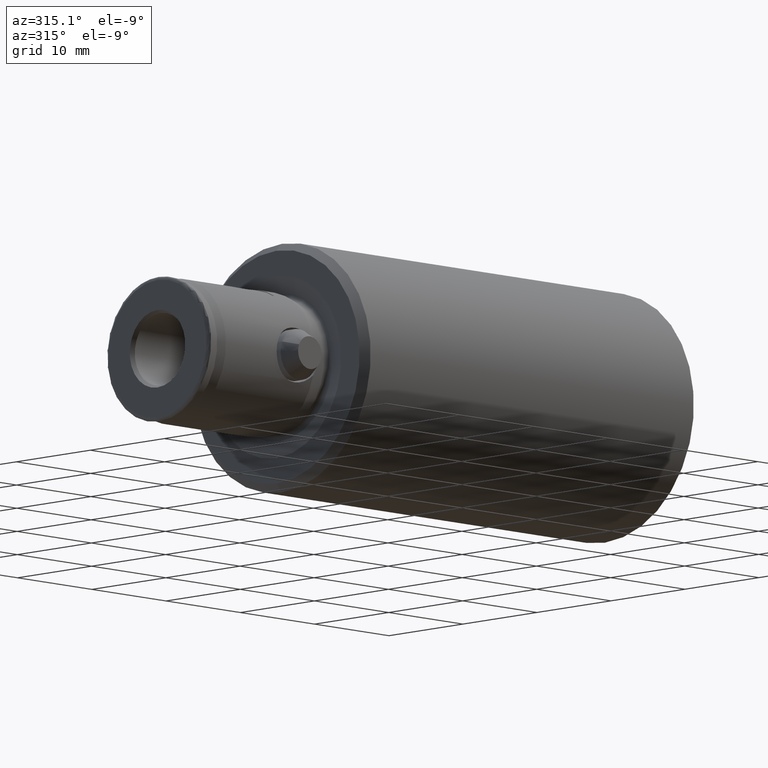
[diagram: clean part render]
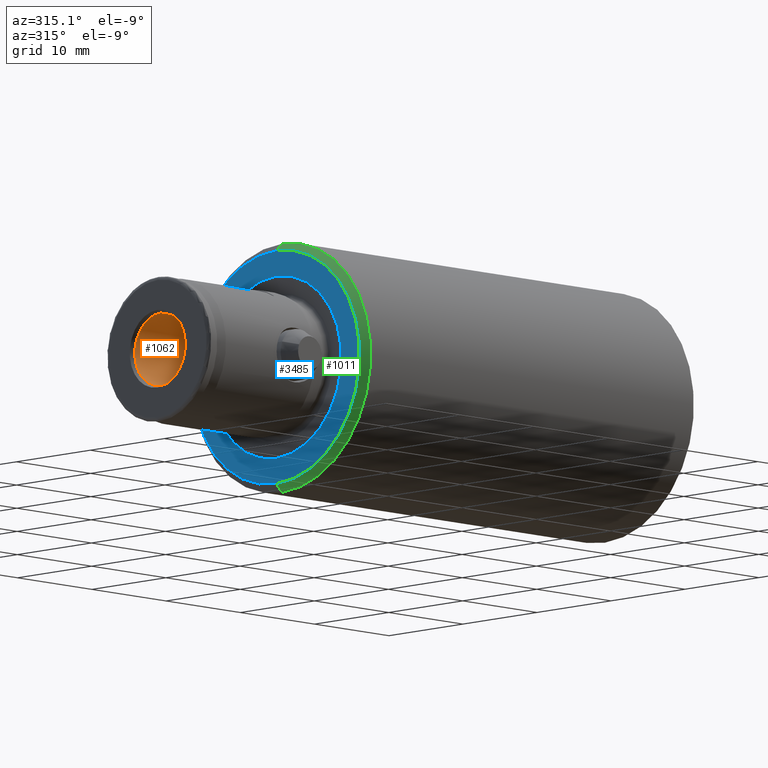
[diagram: same view with three faces highlighted in distinct colors, each labeled with its STEP entity id]
A machine part, auxiliary view with three faces highlighted in distinct colors.
Their STEP definitions:

[orange] entity #1062 — the highlighted cylindrical surface (partial cylindrical patch) has radius 3.5 mm, axis along (-1, 0, -0).
#19 = FACE_OUTER_BOUND ( 'NONE', #2762, .T. ) ;
#35 = ORIENTED_EDGE ( 'NONE', *, *, #2875, .T. ) ;
#38 = EDGE_CURVE ( 'NONE', #66, #3526, #2952, .T. ) ;
#40 = CARTESIAN_POINT ( 'NONE',  ( -0.6705354225800445000, 3.439204883824248600, 51.41427216192288100 ) ) ;
#56 = CARTESIAN_POINT ( 'NONE',  ( -2.482216308833650900, 2.467971294792597800, 48.65803483460760500 ) ) ;
#66 = VERTEX_POINT ( 'NONE', #887 ) ;
#71 = CARTESIAN_POINT ( 'NONE',  ( -0.3431123106384330600, 3.487133633867435000, 46.51792659859923900 ) ) ;
#81 = B_SPLINE_CURVE_WITH_KNOTS ( 'NONE', 3,
 ( #434, #1120, #1432, #3727, #1769, #4056, #2097, #145, #2437, #461, #2765, #795, #3077, #1136, #3405, #1445, #3740, #1785, #4071, #2106, #161, #2450, #475, #2775, #810, #3091, #1149, #3420, #1459, #3751 ),
 .UNSPECIFIED., .F., .F.,
 ( 4, 2, 2, 2, 2, 2, 2, 2, 2, 2, 2, 2, 2, 2, 4 ),
 ( 0.008142227177024407400, 0.008650378325672308800, 0.009158529474320210200, 0.01017483177161600600, 0.01068298292026390400, 0.01119113406891180000, 0.01169928521755969800, 0.01220743636620759600, 0.01271558751485549400, 0.01322373866350339000, 0.01424004096079918600, 0.01474819210944707700, 0.01525634325809496800, 0.01576449440674285900, 0.01627264555539075000 ),
 .UNSPECIFIED. ) ;
#118 = DIRECTION ( 'NONE',  ( -0.0000000000000000000, -0.0000000000000000000, 1.000000000000000000 ) ) ;
#144 = CARTESIAN_POINT ( 'NONE',  ( 3.500000000000000000, 2.610441737844971200E-016, 53.24999999999999300 ) ) ;
#145 = CARTESIAN_POINT ( 'NONE',  ( 1.887866161972031200, 2.950011481771301500, 47.35352781131247500 ) ) ;
#160 = CARTESIAN_POINT ( 'NONE',  ( 3.280464967001534200, 1.235861272596863000, 52.84302111546583800 ) ) ;
#161 = CARTESIAN_POINT ( 'NONE',  ( 1.995196348625067500, 2.887101770125802600, 50.53889020587783400 ) ) ;
#172 = CARTESIAN_POINT ( 'NONE',  ( 3.005962981786305400, 1.793794415438251900, 50.35599755682680700 ) ) ;
#246 = VERTEX_POINT ( 'NONE', #448 ) ;
#251 = VERTEX_POINT ( 'NONE', #2420 ) ;
#281 = CARTESIAN_POINT ( 'NONE',  ( 3.500000000000000000, 0.0000000000000000000, 0.0000000000000000000 ) ) ;
#341 = AXIS2_PLACEMENT_3D ( 'NONE', #752, #3027, #1079 ) ;
#351 = EDGE_CURVE ( 'NONE', #246, #1810, #565, .T. ) ;
#352 = CARTESIAN_POINT ( 'NONE',  ( -1.285980198335047000, 3.270383196310063600, 51.16894089365562300 ) ) ;
#373 = CARTESIAN_POINT ( 'NONE',  ( -2.364630610533931400, 2.581771683845384100, 48.17255734451457300 ) ) ;
#388 = CARTESIAN_POINT ( 'NONE',  ( 3.061619777722069700E-016, 3.500000000000000000, 46.50000000000000000 ) ) ;
#429 = CARTESIAN_POINT ( 'NONE',  ( -3.500000000000000000, 4.286263797015735600E-016, 0.0000000000000000000 ) ) ;
#434 = CARTESIAN_POINT ( 'NONE',  ( 3.061619777722069700E-016, 3.500000000000000000, 46.50000000000000000 ) ) ;
#448 = CARTESIAN_POINT ( 'NONE',  ( 3.500000000000000000, 0.0000000000000000000, 60.56698729810774800 ) ) ;
#460 = CARTESIAN_POINT ( 'NONE',  ( 3.500000000000000400, 0.1353095862226005900, 53.25000000000000700 ) ) ;
#461 = CARTESIAN_POINT ( 'NONE',  ( 2.162701272314670600, 2.754021796724779800, 47.73605822659469300 ) ) ;
#474 = CARTESIAN_POINT ( 'NONE',  ( 3.119858925470030200, 1.588416127185096700, 52.47202111316654800 ) ) ;
#475 = CARTESIAN_POINT ( 'NONE',  ( 1.538927511015989700, 3.146818823286347700, 50.97665974346773500 ) ) ;
#478 = ORIENTED_EDGE ( 'NONE', *, *, #351, .T. ) ;
#483 = CARTESIAN_POINT ( 'NONE',  ( 3.120002460480572700, 1.588151074585294000, 50.02757936062951000 ) ) ;
#498 = ORIENTED_EDGE ( 'NONE', *, *, #756, .T. ) ;
#565 = CIRCLE ( 'NONE', #341, 3.500000000000000000 ) ;
#648 = EDGE_CURVE ( 'NONE', #4089, #66, #2396, .T. ) ;
#678 = FACE_BOUND ( 'NONE', #3462, .T. ) ;
#693 = CARTESIAN_POINT ( 'NONE',  ( -1.886799119579478200, 2.950684532684875200, 50.64766414144862200 ) ) ;
#703 = VECTOR ( 'NONE', #2413, 1000.000000000000000 ) ;
#707 = CARTESIAN_POINT ( 'NONE',  ( -2.161259850131959300, 2.755142574535705900, 47.73366254297636900 ) ) ;
#752 = CARTESIAN_POINT ( 'NONE',  ( 0.0000000000000000000, 0.0000000000000000000, 60.56698729810774800 ) ) ;
#756 = EDGE_CURVE ( 'NONE', #3526, #1414, #1053, .T. ) ;
#795 = CARTESIAN_POINT ( 'NONE',  ( 2.365272960845886000, 2.581168163197376900, 48.17450396673849900 ) ) ;
#809 = CARTESIAN_POINT ( 'NONE',  ( 3.006833445989888400, 1.792338209967291500, 52.14687682266786300 ) ) ;
#810 = CARTESIAN_POINT ( 'NONE',  ( 1.134371722761302800, 3.314785638488976000, 51.23383349870009300 ) ) ;
#823 = CARTESIAN_POINT ( 'NONE',  ( 3.240407826058251800, 1.326471784472252200, 49.74771099519588800 ) ) ;
#847 = CARTESIAN_POINT ( 'NONE',  ( -3.500000000000000000, 4.286263797015734600E-016, 18.86488837849823600 ) ) ;
#887 = CARTESIAN_POINT ( 'NONE',  ( 0.0000000000000000000, 3.499999999999997800, 18.86488837849823600 ) ) ;
#972 = AXIS2_PLACEMENT_3D ( 'NONE', #3883, #1600, #1268 ) ;
#993 = ORIENTED_EDGE ( 'NONE', *, *, #648, .T. ) ;
#1027 = CARTESIAN_POINT ( 'NONE',  ( -2.162927356596466000, 2.753832568531272800, 50.26350931059186400 ) ) ;
#1040 = CARTESIAN_POINT ( 'NONE',  ( 3.500000000000000000, 0.0000000000000000000, 18.86488837849823600 ) ) ;
#1044 = CARTESIAN_POINT ( 'NONE',  ( -1.886843374425818200, 2.950677877677379000, 47.35233068107467600 ) ) ;
#1053 = LINE ( 'NONE', #281, #1812 ) ;
#1057 = DIRECTION ( 'NONE',  ( 0.0000000000000000000, -4.148317104405457400E-017, -1.000000000000000000 ) ) ;
#1062 = ADVANCED_FACE ( 'NONE', ( #19, #678 ), #2323, .F. ) ;
#1078 = CARTESIAN_POINT ( 'NONE',  ( 3.500000000000000000, -7.774546621463059200E-017, 49.25000000000000000 ) ) ;
#1079 = DIRECTION ( 'NONE',  ( 1.000000000000000000, 0.0000000000000000000, 0.0000000000000000000 ) ) ;
#1120 = CARTESIAN_POINT ( 'NONE',  ( 0.1698619389239767500, 3.500000000000001300, 46.50000000000002100 ) ) ;
#1136 = CARTESIAN_POINT ( 'NONE',  ( 2.482778614663782700, 2.467401880149701700, 48.66193324074072300 ) ) ;
#1148 = CARTESIAN_POINT ( 'NONE',  ( 2.917883842938216300, 1.933125680610410000, 51.77967263128948600 ) ) ;
#1149 = CARTESIAN_POINT ( 'NONE',  ( 0.6707495009829057600, 3.439161042097103900, 51.41420977330495400 ) ) ;
#1159 = CARTESIAN_POINT ( 'NONE',  ( 3.351856539173821800, 1.013729725858635700, 49.52118059685040000 ) ) ;
#1193 = VECTOR ( 'NONE', #118, 1000.000000000000000 ) ;
#1268 = DIRECTION ( 'NONE',  ( 1.000000000000000000, 0.0000000000000000000, 0.0000000000000000000 ) ) ;
#1313 = ORIENTED_EDGE ( 'NONE', *, *, #3222, .F. ) ;
#1331 = CARTESIAN_POINT ( 'NONE',  ( -9.619845486922396800E-016, 3.500000000000000000, 51.50000000000000700 ) ) ;
#1347 = EDGE_CURVE ( 'NONE', #4089, #1810, #3890, .T. ) ;
#1350 = CARTESIAN_POINT ( 'NONE',  ( -2.364482919861924200, 2.581902618484873900, 49.82781121397877700 ) ) ;
#1361 = CARTESIAN_POINT ( 'NONE',  ( -1.541693124924122100, 3.145437301695475100, 47.02554196705335000 ) ) ;
#1397 = VERTEX_POINT ( 'NONE', #3712 ) ;
#1414 = VERTEX_POINT ( 'NONE', #1078 ) ;
#1432 = CARTESIAN_POINT ( 'NONE',  ( 0.3396991293356734200, 3.487537955502567000, 46.51735747085385200 ) ) ;
#1445 = CARTESIAN_POINT ( 'NONE',  ( 2.499868209436289800, 2.449624250884199200, 49.17357832655476800 ) ) ;
#1458 = CARTESIAN_POINT ( 'NONE',  ( 2.872348446347452000, 1.999903601781593200, 51.38621083999114300 ) ) ;
#1459 = CARTESIAN_POINT ( 'NONE',  ( 0.1721624386279484400, 3.500000000000002200, 51.50000000000000000 ) ) ;
#1474 = CARTESIAN_POINT ( 'NONE',  ( 3.467562204520510300, 0.5365698755757001300, 49.30540617427810400 ) ) ;
#1518 = EDGE_CURVE ( 'NONE', #1397, #251, #81, .T. ) ;
#1569 = AXIS2_PLACEMENT_3D ( 'NONE', #3597, #1638, #3924 ) ;
#1600 = DIRECTION ( 'NONE',  ( -0.0000000000000000000, -0.0000000000000000000, 1.000000000000000000 ) ) ;
#1638 = DIRECTION ( 'NONE',  ( 0.0000000000000000000, -4.148317104405457400E-017, -1.000000000000000000 ) ) ;
#1663 = CARTESIAN_POINT ( 'NONE',  ( -0.1724124911442676000, 3.500000000000003100, 51.50000000000000700 ) ) ;
#1677 = CARTESIAN_POINT ( 'NONE',  ( -2.482199332794092300, 2.467978241146383300, 49.34145115149936300 ) ) ;
#1694 = CARTESIAN_POINT ( 'NONE',  ( -1.138053444781884000, 3.313618734228448700, 46.76788355392465500 ) ) ;
#1769 = CARTESIAN_POINT ( 'NONE',  ( 0.8314020514018566300, 3.403494461076392900, 46.63652477812701100 ) ) ;
#1784 = CARTESIAN_POINT ( 'NONE',  ( 3.462412537037888000, 0.5280524939007206200, 53.18359160772228500 ) ) ;
#1785 = CARTESIAN_POINT ( 'NONE',  ( 2.413842204305344900, 2.534883028181215400, 49.67187484034616300 ) ) ;
#1797 = CARTESIAN_POINT ( 'NONE',  ( 2.881666879182593000, 1.986707181345840600, 50.98418543544870100 ) ) ;
#1808 = CARTESIAN_POINT ( 'NONE',  ( 3.500000000000000000, -7.774546621463059200E-017, 49.25000000000000000 ) ) ;
#1810 = VERTEX_POINT ( 'NONE', #3633 ) ;
#1812 = VECTOR ( 'NONE', #3860, 1000.000000000000000 ) ;
#1993 = CARTESIAN_POINT ( 'NONE',  ( -0.3408768020392499700, 3.487341536426659300, 51.48236396013999200 ) ) ;
#2007 = EDGE_CURVE ( 'NONE', #251, #1397, #2047, .T. ) ;
#2008 = CARTESIAN_POINT ( 'NONE',  ( -2.499896478854362500, 2.449595398570548500, 48.82829697935282100 ) ) ;
#2022 = CARTESIAN_POINT ( 'NONE',  ( -0.6732059576648687900, 3.438694632665959500, 46.58645319783990100 ) ) ;
#2047 = B_SPLINE_CURVE_WITH_KNOTS ( 'NONE', 3,
 ( #1331, #1663, #1993, #40, #2326, #352, #2661, #693, #2976, #1027, #3301, #1350, #3640, #1677, #3965, #2008, #56, #2342, #373, #2681, #707, #2992, #1044, #3316, #1361, #3655, #1694, #3981, #2022, #71, #2360, #388 ),
 .UNSPECIFIED., .F., .F.,
 ( 4, 2, 2, 2, 2, 2, 2, 2, 2, 2, 2, 2, 2, 2, 2, 4 ),
 ( 1.151474395749807400E-018, 0.0005088891985640288300, 0.001017778397128056100, 0.002035556794256119200, 0.002544445992820143200, 0.003053335191384167100, 0.003562224389948191000, 0.004071113588512215000, 0.004580002787076238100, 0.005088891985640262900, 0.005597781184204286000, 0.006106670382768310800, 0.006615559581332333900, 0.007124448779896358700, 0.007633337978460381700, 0.008142227177024407400 ),
 .UNSPECIFIED. ) ;
#2097 = CARTESIAN_POINT ( 'NONE',  ( 1.554792390955889800, 3.146274967867836600, 47.01700784782500600 ) ) ;
#2105 = CARTESIAN_POINT ( 'NONE',  ( 3.357676984715223700, 1.018442667180802900, 52.99107097644999700 ) ) ;
#2106 = CARTESIAN_POINT ( 'NONE',  ( 2.174595459798663600, 2.747549593230940200, 50.27456422211993500 ) ) ;
#2118 = VERTEX_POINT ( 'NONE', #3871 ) ;
#2119 = CARTESIAN_POINT ( 'NONE',  ( 2.943513461618722600, 1.894529058630780800, 50.59601344107034700 ) ) ;
#2323 = CYLINDRICAL_SURFACE ( 'NONE', #972, 3.500000000000000000 ) ;
#2326 = CARTESIAN_POINT ( 'NONE',  ( -0.8326982145066320600, 3.403145826123489900, 51.36296976307947700 ) ) ;
#2342 = CARTESIAN_POINT ( 'NONE',  ( -2.413963827415536400, 2.534769961098904300, 48.32834784440832700 ) ) ;
#2360 = CARTESIAN_POINT ( 'NONE',  ( -0.1701086501438741600, 3.499999999999999100, 46.49999999999999300 ) ) ;
#2396 = CIRCLE ( 'NONE', #1569, 3.500000000000000000 ) ;
#2413 = DIRECTION ( 'NONE',  ( -0.0000000000000000000, -0.0000000000000000000, 1.000000000000000000 ) ) ;
#2420 = CARTESIAN_POINT ( 'NONE',  ( -9.619845486922396800E-016, 3.500000000000000000, 51.50000000000000700 ) ) ;
#2437 = CARTESIAN_POINT ( 'NONE',  ( 1.986899893727020100, 2.883425334981685000, 47.47453141227423900 ) ) ;
#2449 = CARTESIAN_POINT ( 'NONE',  ( 3.160922091530439900, 1.506078484834742600, 52.57211759589457500 ) ) ;
#2450 = CARTESIAN_POINT ( 'NONE',  ( 1.662555241999429200, 3.082604636092310300, 50.87367498545735600 ) ) ;
#2461 = CARTESIAN_POINT ( 'NONE',  ( 3.042717002297419300, 1.731621330730667600, 50.24102843339175500 ) ) ;
#2567 = ORIENTED_EDGE ( 'NONE', *, *, #1347, .F. ) ;
#2661 = CARTESIAN_POINT ( 'NONE',  ( -1.554231674016640600, 3.146516235421331400, 50.98332954047715800 ) ) ;
#2681 = CARTESIAN_POINT ( 'NONE',  ( -2.238357221485756100, 2.691984379747120100, 47.87487946360694500 ) ) ;
#2762 = EDGE_LOOP ( 'NONE', ( #2567, #993, #4048, #498, #1313, #35, #478 ) ) ;
#2765 = CARTESIAN_POINT ( 'NONE',  ( 2.239742059163128700, 2.690817863480934800, 47.87771866777760700 ) ) ;
#2774 = CARTESIAN_POINT ( 'NONE',  ( 3.042887717155165800, 1.731305821835916700, 52.25944615775365800 ) ) ;
#2775 = CARTESIAN_POINT ( 'NONE',  ( 1.275028040484296900, 3.262678360906865900, 51.15633604097008900 ) ) ;
#2786 = CARTESIAN_POINT ( 'NONE',  ( 3.160380041050222300, 1.507238624210494700, 49.92915505124772600 ) ) ;
#2875 = EDGE_CURVE ( 'NONE', #2118, #246, #3186, .T. ) ;
#2952 = CIRCLE ( 'NONE', #4022, 3.500000000000000000 ) ;
#2976 = CARTESIAN_POINT ( 'NONE',  ( -1.987622679141457100, 2.882915997870810100, 50.52448896789326200 ) ) ;
#2992 = CARTESIAN_POINT ( 'NONE',  ( -1.985830254502071400, 2.884152032420603400, 47.47319520070254100 ) ) ;
#3004 = CARTESIAN_POINT ( 'NONE',  ( 0.0000000000000000000, -2.079725855142497400E-015, 18.86488837849823600 ) ) ;
#3027 = DIRECTION ( 'NONE',  ( 0.0000000000000000000, 0.0000000000000000000, 1.000000000000000000 ) ) ;
#3077 = CARTESIAN_POINT ( 'NONE',  ( 2.414821392529251700, 2.533949354225770300, 48.33133235061731600 ) ) ;
#3090 = CARTESIAN_POINT ( 'NONE',  ( 2.944325339589081400, 1.893270167061695800, 51.90756548606335500 ) ) ;
#3091 = CARTESIAN_POINT ( 'NONE',  ( 0.8333135860758830200, 3.402968043016943800, 51.36271025997191200 ) ) ;
#3104 = CARTESIAN_POINT ( 'NONE',  ( 3.280042344172327900, 1.226341076833126900, 49.66489683330463100 ) ) ;
#3127 = ORIENTED_EDGE ( 'NONE', *, *, #1518, .F. ) ;
#3186 = LINE ( 'NONE', #3707, #703 ) ;
#3222 = EDGE_CURVE ( 'NONE', #2118, #1414, #3837, .T. ) ;
#3301 = CARTESIAN_POINT ( 'NONE',  ( -2.238408536790590800, 2.691937560955084400, 50.12497915835396600 ) ) ;
#3316 = CARTESIAN_POINT ( 'NONE',  ( -1.664260843635680500, 3.081706297129945600, 47.12777459997907000 ) ) ;
#3329 = DIRECTION ( 'NONE',  ( 0.0000000000000000000, 1.000000000000000000, 0.0000000000000000000 ) ) ;
#3405 = CARTESIAN_POINT ( 'NONE',  ( 2.500130333407692500, 2.449356721885346900, 48.83023894447048000 ) ) ;
#3419 = CARTESIAN_POINT ( 'NONE',  ( 2.882103347864710200, 1.986076864107329000, 51.52023449674346300 ) ) ;
#3420 = CARTESIAN_POINT ( 'NONE',  ( 0.3411801413674451200, 3.487309805234364700, 51.48231944634982700 ) ) ;
#3434 = CARTESIAN_POINT ( 'NONE',  ( 3.384490760683108100, 0.9003865887771833600, 49.45929006107797200 ) ) ;
#3462 = EDGE_LOOP ( 'NONE', ( #3659, #3127 ) ) ;
#3526 = VERTEX_POINT ( 'NONE', #1040 ) ;
#3597 = CARTESIAN_POINT ( 'NONE',  ( 0.0000000000000000000, -2.079725855142497400E-015, 18.86488837849823600 ) ) ;
#3633 = CARTESIAN_POINT ( 'NONE',  ( -3.500000000000000000, 4.286263797015735600E-016, 60.56698729810774800 ) ) ;
#3640 = CARTESIAN_POINT ( 'NONE',  ( -2.414708796265253400, 2.534050424860292900, 49.66864328742827400 ) ) ;
#3655 = CARTESIAN_POINT ( 'NONE',  ( -1.279017468496465500, 3.261089975087548200, 46.84606951584160600 ) ) ;
#3659 = ORIENTED_EDGE ( 'NONE', *, *, #2007, .F. ) ;
#3707 = CARTESIAN_POINT ( 'NONE',  ( 3.500000000000000000, 0.0000000000000000000, 0.0000000000000000000 ) ) ;
#3712 = CARTESIAN_POINT ( 'NONE',  ( 3.061619777722069700E-016, 3.500000000000000000, 46.50000000000000000 ) ) ;
#3727 = CARTESIAN_POINT ( 'NONE',  ( 0.6727106611345723400, 3.438862727114638100, 46.58621256271550200 ) ) ;
#3739 = CARTESIAN_POINT ( 'NONE',  ( 3.492186091711756200, 0.2679110184499317600, 53.23641376051464400 ) ) ;
#3740 = CARTESIAN_POINT ( 'NONE',  ( 2.481891342664350300, 2.468295265371347900, 49.34389729801733900 ) ) ;
#3750 = CARTESIAN_POINT ( 'NONE',  ( 2.872214905039393300, 2.000095385956170500, 51.11663487552243600 ) ) ;
#3751 = CARTESIAN_POINT ( 'NONE',  ( -9.619845486922396800E-016, 3.500000000000000000, 51.50000000000000700 ) ) ;
#3759 = CARTESIAN_POINT ( 'NONE',  ( 3.499999999999997800, 0.2702516901589711600, 49.25000000000001400 ) ) ;
#3837 = B_SPLINE_CURVE_WITH_KNOTS ( 'NONE', 3,
 ( #144, #460, #3739, #1784, #4070, #2105, #160, #2449, #474, #2774, #809, #3090, #1148, #3419, #1458, #3750, #1797, #4082, #2119, #172, #2461, #483, #2786, #823, #3104, #1159, #3434, #1474, #3759, #1808 ),
 .UNSPECIFIED., .F., .F.,
 ( 4, 2, 2, 2, 2, 2, 2, 2, 2, 2, 2, 2, 2, 2, 4 ),
 ( 0.006398873246374884300, 0.006797949364957414300, 0.007197025483539944300, 0.007995177720705012200, 0.008394253839287553500, 0.008793329957870093000, 0.009192406076452634300, 0.009591482195035175600, 0.009990558313617715200, 0.01038963443220025700, 0.01078871055078279800, 0.01118778666936533700, 0.01158686278794787900, 0.01198593890653041800, 0.01278409114369551000 ),
 .UNSPECIFIED. ) ;
#3860 = DIRECTION ( 'NONE',  ( -0.0000000000000000000, -0.0000000000000000000, 1.000000000000000000 ) ) ;
#3871 = CARTESIAN_POINT ( 'NONE',  ( 3.500000000000000000, 2.610441737844971200E-016, 53.24999999999999300 ) ) ;
#3883 = CARTESIAN_POINT ( 'NONE',  ( 0.0000000000000000000, 0.0000000000000000000, 0.0000000000000000000 ) ) ;
#3890 = LINE ( 'NONE', #429, #1193 ) ;
#3924 = DIRECTION ( 'NONE',  ( 0.0000000000000000000, 1.000000000000000000, 0.0000000000000000000 ) ) ;
#3965 = CARTESIAN_POINT ( 'NONE',  ( -2.500102604334470100, 2.449385022712113400, 49.16867513180017100 ) ) ;
#3981 = CARTESIAN_POINT ( 'NONE',  ( -0.8332022291330348800, 3.403088127624292800, 46.63710272813487700 ) ) ;
#4022 = AXIS2_PLACEMENT_3D ( 'NONE', #3004, #1057, #3329 ) ;
#4048 = ORIENTED_EDGE ( 'NONE', *, *, #38, .T. ) ;
#4056 = CARTESIAN_POINT ( 'NONE',  ( 1.286680513155311400, 3.270239888399309800, 46.83126044924775800 ) ) ;
#4070 = CARTESIAN_POINT ( 'NONE',  ( 3.440090667694989600, 0.6565677787121514400, 53.14368876925426100 ) ) ;
#4071 = CARTESIAN_POINT ( 'NONE',  ( 2.363402268073009800, 2.582886614725368600, 49.83076745349625700 ) ) ;
#4082 = CARTESIAN_POINT ( 'NONE',  ( 2.917257965838755900, 1.934067058749363100, 50.72364705814509700 ) ) ;
#4089 = VERTEX_POINT ( 'NONE', #847 ) ;

[blue] entity #3485 — the highlighted planar face has unit normal (-1, 0, -0).
#68 = VERTEX_POINT ( 'NONE', #912 ) ;
#95 = DIRECTION ( 'NONE',  ( 1.000000000000000000, 0.0000000000000000000, 0.0000000000000000000 ) ) ;
#128 = CIRCLE ( 'NONE', #1230, 8.795249112199732300 ) ;
#142 = CIRCLE ( 'NONE', #2115, 11.25000000000000500 ) ;
#177 = EDGE_LOOP ( 'NONE', ( #1039, #1495 ) ) ;
#213 = CARTESIAN_POINT ( 'NONE',  ( -11.25000000000000500, 0.0000000000000000000, 45.00000000000000000 ) ) ;
#242 = CIRCLE ( 'NONE', #3810, 11.25000000000000500 ) ;
#363 = DIRECTION ( 'NONE',  ( 1.000000000000000000, 0.0000000000000000000, -0.0000000000000000000 ) ) ;
#667 = AXIS2_PLACEMENT_3D ( 'NONE', #1729, #4017, #2052 ) ;
#912 = CARTESIAN_POINT ( 'NONE',  ( 11.25000000000000500, 1.423651904008798500E-015, 45.00000000000000000 ) ) ;
#1039 = ORIENTED_EDGE ( 'NONE', *, *, #3820, .F. ) ;
#1088 = DIRECTION ( 'NONE',  ( 0.0000000000000000000, 0.0000000000000000000, 1.000000000000000000 ) ) ;
#1187 = CARTESIAN_POINT ( 'NONE',  ( 0.0000000000000000000, 0.0000000000000000000, 45.00000000000000000 ) ) ;
#1230 = AXIS2_PLACEMENT_3D ( 'NONE', #3039, #1088, #3360 ) ;
#1337 = PLANE ( 'NONE',  #2035 ) ;
#1408 = EDGE_CURVE ( 'NONE', #2677, #3933, #3590, .T. ) ;
#1495 = ORIENTED_EDGE ( 'NONE', *, *, #1408, .F. ) ;
#1510 = DIRECTION ( 'NONE',  ( 1.000000000000000000, 0.0000000000000000000, 0.0000000000000000000 ) ) ;
#1715 = EDGE_LOOP ( 'NONE', ( #2861, #3200 ) ) ;
#1729 = CARTESIAN_POINT ( 'NONE',  ( 0.0000000000000000000, 0.0000000000000000000, 45.00000000000000000 ) ) ;
#1879 = EDGE_CURVE ( 'NONE', #68, #2612, #242, .T. ) ;
#2035 = AXIS2_PLACEMENT_3D ( 'NONE', #2973, #2334, #363 ) ;
#2042 = DIRECTION ( 'NONE',  ( 0.0000000000000000000, 0.0000000000000000000, 1.000000000000000000 ) ) ;
#2052 = DIRECTION ( 'NONE',  ( 1.000000000000000000, 0.0000000000000000000, 0.0000000000000000000 ) ) ;
#2095 = CARTESIAN_POINT ( 'NONE',  ( 8.795249112199734000, 0.0000000000000000000, 45.00000000000000000 ) ) ;
#2115 = AXIS2_PLACEMENT_3D ( 'NONE', #1187, #3469, #1510 ) ;
#2202 = CARTESIAN_POINT ( 'NONE',  ( -8.795249112199734000, 1.077107367295900100E-015, 45.00000000000000000 ) ) ;
#2334 = DIRECTION ( 'NONE',  ( 0.0000000000000000000, 0.0000000000000000000, 1.000000000000000000 ) ) ;
#2612 = VERTEX_POINT ( 'NONE', #213 ) ;
#2677 = VERTEX_POINT ( 'NONE', #2202 ) ;
#2861 = ORIENTED_EDGE ( 'NONE', *, *, #3283, .T. ) ;
#2973 = CARTESIAN_POINT ( 'NONE',  ( 0.0000000000000000000, 0.0000000000000000000, 45.00000000000000000 ) ) ;
#3039 = CARTESIAN_POINT ( 'NONE',  ( 0.0000000000000000000, 0.0000000000000000000, 45.00000000000000000 ) ) ;
#3200 = ORIENTED_EDGE ( 'NONE', *, *, #1879, .T. ) ;
#3283 = EDGE_CURVE ( 'NONE', #2612, #68, #142, .T. ) ;
#3360 = DIRECTION ( 'NONE',  ( 1.000000000000000000, 0.0000000000000000000, 0.0000000000000000000 ) ) ;
#3469 = DIRECTION ( 'NONE',  ( 0.0000000000000000000, 0.0000000000000000000, 1.000000000000000000 ) ) ;
#3485 = ADVANCED_FACE ( 'NONE', ( #3752, #3836 ), #1337, .T. ) ;
#3590 = CIRCLE ( 'NONE', #667, 8.795249112199732300 ) ;
#3752 = FACE_BOUND ( 'NONE', #177, .T. ) ;
#3810 = AXIS2_PLACEMENT_3D ( 'NONE', #3999, #2042, #95 ) ;
#3820 = EDGE_CURVE ( 'NONE', #3933, #2677, #128, .T. ) ;
#3836 = FACE_OUTER_BOUND ( 'NONE', #1715, .T. ) ;
#3933 = VERTEX_POINT ( 'NONE', #2095 ) ;
#3999 = CARTESIAN_POINT ( 'NONE',  ( 0.0000000000000000000, 0.0000000000000000000, 45.00000000000000000 ) ) ;
#4017 = DIRECTION ( 'NONE',  ( 0.0000000000000000000, 0.0000000000000000000, 1.000000000000000000 ) ) ;

[green] entity #1011 — the highlighted conical surface has half-angle 45 deg.
#62 = ORIENTED_EDGE ( 'NONE', *, *, #4004, .F. ) ;
#68 = VERTEX_POINT ( 'NONE', #912 ) ;
#76 = VECTOR ( 'NONE', #2172, 1000.000000000000100 ) ;
#142 = CIRCLE ( 'NONE', #2115, 11.25000000000000500 ) ;
#213 = CARTESIAN_POINT ( 'NONE',  ( -11.25000000000000500, 0.0000000000000000000, 45.00000000000000000 ) ) ;
#296 = ORIENTED_EDGE ( 'NONE', *, *, #4171, .T. ) ;
#324 = DIRECTION ( 'NONE',  ( 0.0000000000000000000, 0.0000000000000000000, -1.000000000000000000 ) ) ;
#558 = AXIS2_PLACEMENT_3D ( 'NONE', #1768, #4055, #2096 ) ;
#618 = VERTEX_POINT ( 'NONE', #1891 ) ;
#651 = DIRECTION ( 'NONE',  ( -1.000000000000000000, 0.0000000000000000000, 0.0000000000000000000 ) ) ;
#789 = CONICAL_SURFACE ( 'NONE', #4114, 11.25000000000000500, 0.7853981633974459500 ) ;
#912 = CARTESIAN_POINT ( 'NONE',  ( 11.25000000000000500, 1.423651904008798500E-015, 45.00000000000000000 ) ) ;
#1011 = ADVANCED_FACE ( 'NONE', ( #1950 ), #789, .T. ) ;
#1187 = CARTESIAN_POINT ( 'NONE',  ( 0.0000000000000000000, 0.0000000000000000000, 45.00000000000000000 ) ) ;
#1510 = DIRECTION ( 'NONE',  ( 1.000000000000000000, 0.0000000000000000000, 0.0000000000000000000 ) ) ;
#1768 = CARTESIAN_POINT ( 'NONE',  ( 0.0000000000000000000, 0.0000000000000000000, 44.25000000000000000 ) ) ;
#1796 = CARTESIAN_POINT ( 'NONE',  ( 11.25000000000000500, 1.377727649040773000E-015, 45.00000000000000000 ) ) ;
#1849 = CARTESIAN_POINT ( 'NONE',  ( -11.25000000000000500, 0.0000000000000000000, 45.00000000000000000 ) ) ;
#1891 = CARTESIAN_POINT ( 'NONE',  ( -12.00000000000000200, 0.0000000000000000000, 44.25000000000000000 ) ) ;
#1950 = FACE_OUTER_BOUND ( 'NONE', #2243, .T. ) ;
#2080 = CIRCLE ( 'NONE', #558, 12.00000000000000200 ) ;
#2096 = DIRECTION ( 'NONE',  ( 1.000000000000000000, 0.0000000000000000000, 0.0000000000000000000 ) ) ;
#2115 = AXIS2_PLACEMENT_3D ( 'NONE', #1187, #3469, #1510 ) ;
#2172 = DIRECTION ( 'NONE',  ( -0.7071067811865459100, 0.0000000000000000000, -0.7071067811865491300 ) ) ;
#2243 = EDGE_LOOP ( 'NONE', ( #62, #3311, #296, #3409 ) ) ;
#2266 = CARTESIAN_POINT ( 'NONE',  ( 12.00000000000000200, 1.469576158976823900E-015, 44.25000000000000000 ) ) ;
#2612 = VERTEX_POINT ( 'NONE', #213 ) ;
#2950 = CARTESIAN_POINT ( 'NONE',  ( 0.0000000000000000000, 0.0000000000000000000, 45.00000000000000000 ) ) ;
#3164 = EDGE_CURVE ( 'NONE', #3426, #618, #2080, .T. ) ;
#3283 = EDGE_CURVE ( 'NONE', #2612, #68, #142, .T. ) ;
#3311 = ORIENTED_EDGE ( 'NONE', *, *, #3283, .F. ) ;
#3334 = LINE ( 'NONE', #1849, #76 ) ;
#3409 = ORIENTED_EDGE ( 'NONE', *, *, #3164, .F. ) ;
#3426 = VERTEX_POINT ( 'NONE', #2266 ) ;
#3433 = DIRECTION ( 'NONE',  ( 0.7071067811865459100, 8.659560562354911900E-017, -0.7071067811865491300 ) ) ;
#3469 = DIRECTION ( 'NONE',  ( 0.0000000000000000000, 0.0000000000000000000, 1.000000000000000000 ) ) ;
#3829 = LINE ( 'NONE', #1796, #3952 ) ;
#3952 = VECTOR ( 'NONE', #3433, 1000.000000000000100 ) ;
#4004 = EDGE_CURVE ( 'NONE', #68, #3426, #3829, .T. ) ;
#4055 = DIRECTION ( 'NONE',  ( 0.0000000000000000000, 0.0000000000000000000, -1.000000000000000000 ) ) ;
#4114 = AXIS2_PLACEMENT_3D ( 'NONE', #2950, #324, #651 ) ;
#4171 = EDGE_CURVE ( 'NONE', #2612, #618, #3334, .T. ) ;